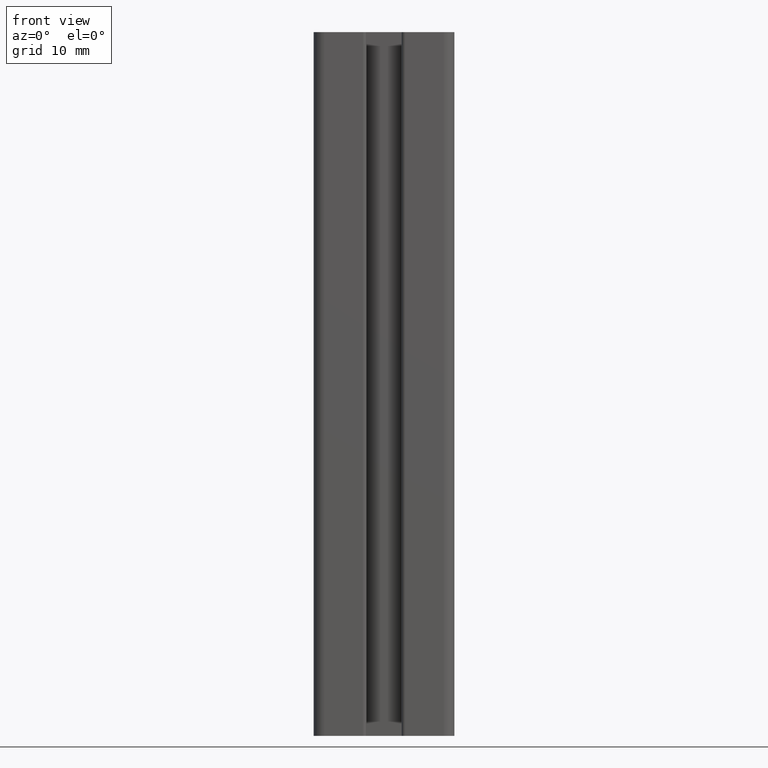
[diagram: clean part render]
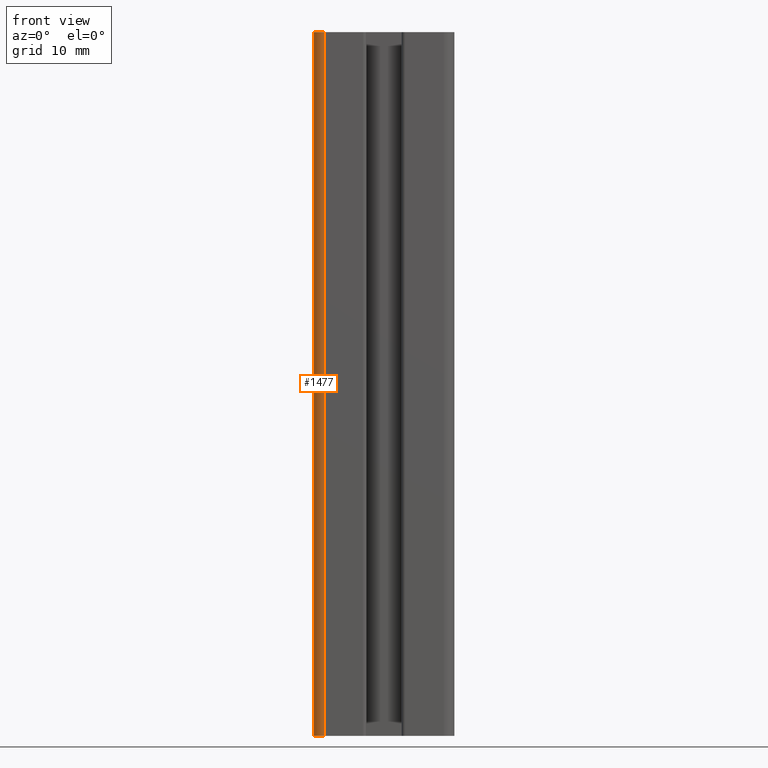
[diagram: same view with one face highlighted and labeled with its STEP entity id]
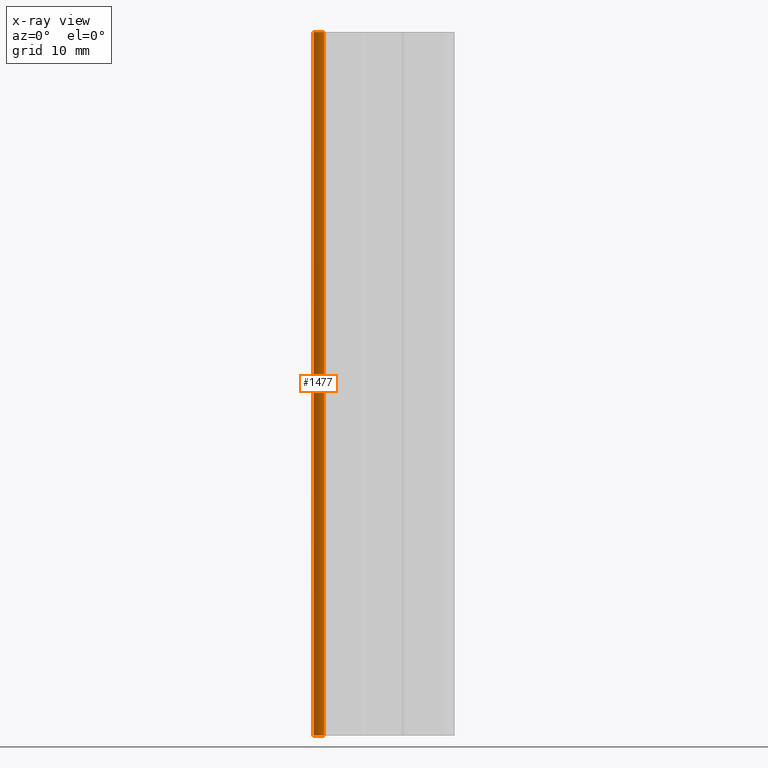
[diagram: x-ray of the same camera — body ghosted, the highlighted face saturated]
A machine part, front view. The second image highlights one B-rep face of the part: STEP entity #1477.
The next image is the same camera in x-ray: the body ghosted, the highlighted face saturated — about 0% of this face is hidden behind the body in this view.
In plain terms, the highlighted cylindrical surface (edge-blend (fillet) strip) has radius 1.5 mm, axis along (0, 0, 1).
Its self-contained STEP definition (entity closure, byte-faithful):
#125=FACE_OUTER_BOUND('',#202,.T.);
#202=EDGE_LOOP('',(#1278,#1279,#1280,#1281));
#330=LINE('',#2460,#474);
#339=LINE('',#2478,#483);
#474=VECTOR('',#2013,100.);
#483=VECTOR('',#2028,100.);
#563=CIRCLE('',#1620,1.5);
#567=CIRCLE('',#1625,1.5);
#701=VERTEX_POINT('',#2457);
#702=VERTEX_POINT('',#2459);
#707=VERTEX_POINT('',#2475);
#708=VERTEX_POINT('',#2477);
#904=EDGE_CURVE('',#701,#702,#330,.T.);
#913=EDGE_CURVE('',#708,#707,#339,.T.);
#924=EDGE_CURVE('',#707,#702,#563,.T.);
#929=EDGE_CURVE('',#708,#701,#567,.T.);
#1278=ORIENTED_EDGE('',*,*,#924,.T.);
#1279=ORIENTED_EDGE('',*,*,#904,.F.);
#1280=ORIENTED_EDGE('',*,*,#929,.F.);
#1281=ORIENTED_EDGE('',*,*,#913,.T.);
#1404=CYLINDRICAL_SURFACE('',#1624,1.5);
#1477=ADVANCED_FACE('',(#125),#1404,.T.);
#1620=AXIS2_PLACEMENT_3D('',#2499,#2047,#2048);
#1624=AXIS2_PLACEMENT_3D('',#2505,#2056,#2057);
#1625=AXIS2_PLACEMENT_3D('',#2506,#2058,#2059);
#2013=DIRECTION('',(0.,0.,1.));
#2028=DIRECTION('',(0.,0.,1.));
#2047=DIRECTION('center_axis',(0.,0.,-1.));
#2048=DIRECTION('ref_axis',(1.,-1.48029736616688E-15,0.));
#2056=DIRECTION('center_axis',(0.,0.,1.));
#2057=DIRECTION('ref_axis',(1.,-1.48029736616688E-15,0.));
#2058=DIRECTION('center_axis',(0.,0.,-1.));
#2059=DIRECTION('ref_axis',(1.,-1.48029736616688E-15,0.));
#2457=CARTESIAN_POINT('',(-10.,-8.5,0.));
#2459=CARTESIAN_POINT('',(-10.,-8.5,100.));
#2460=CARTESIAN_POINT('',(-10.,-8.5,0.));
#2475=CARTESIAN_POINT('',(-8.5,-10.,100.));
#2477=CARTESIAN_POINT('',(-8.5,-10.,0.));
#2478=CARTESIAN_POINT('',(-8.5,-10.,0.));
#2499=CARTESIAN_POINT('Origin',(-8.5,-8.5,100.));
#2505=CARTESIAN_POINT('Origin',(-8.5,-8.5,0.));
#2506=CARTESIAN_POINT('Origin',(-8.5,-8.5,0.));